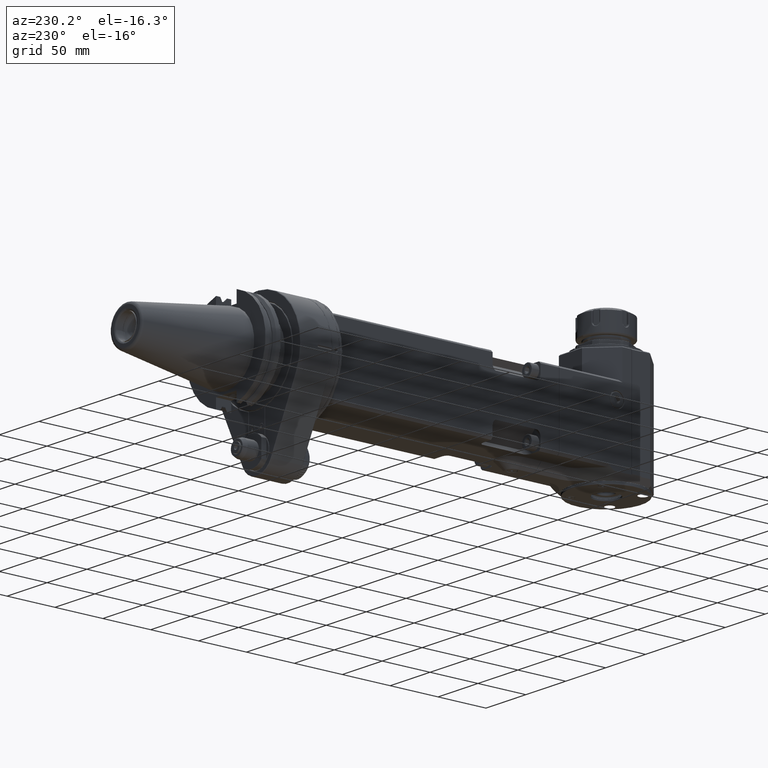
[diagram: clean part render]
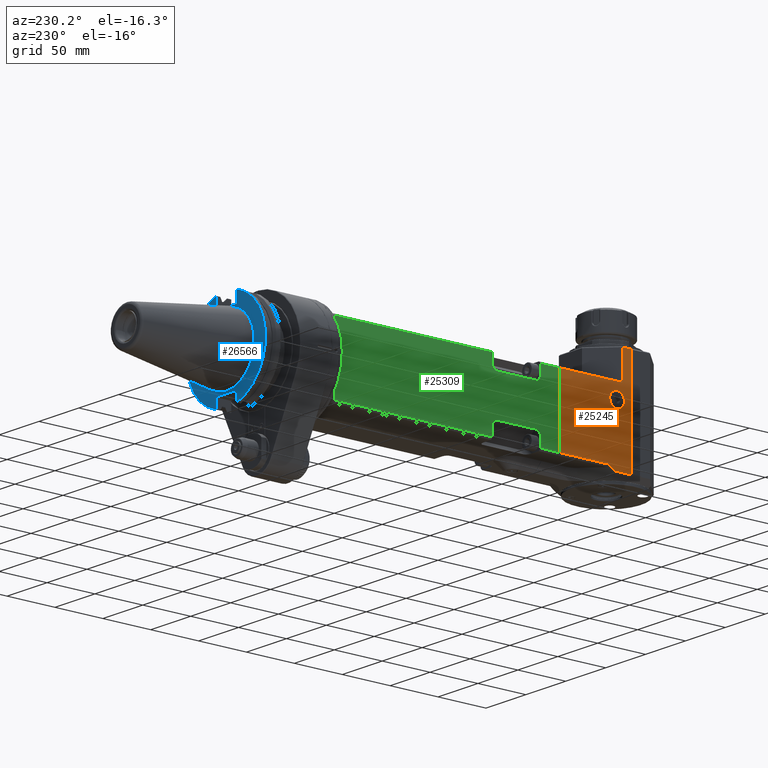
[diagram: same view with three faces highlighted in distinct colors, each labeled with its STEP entity id]
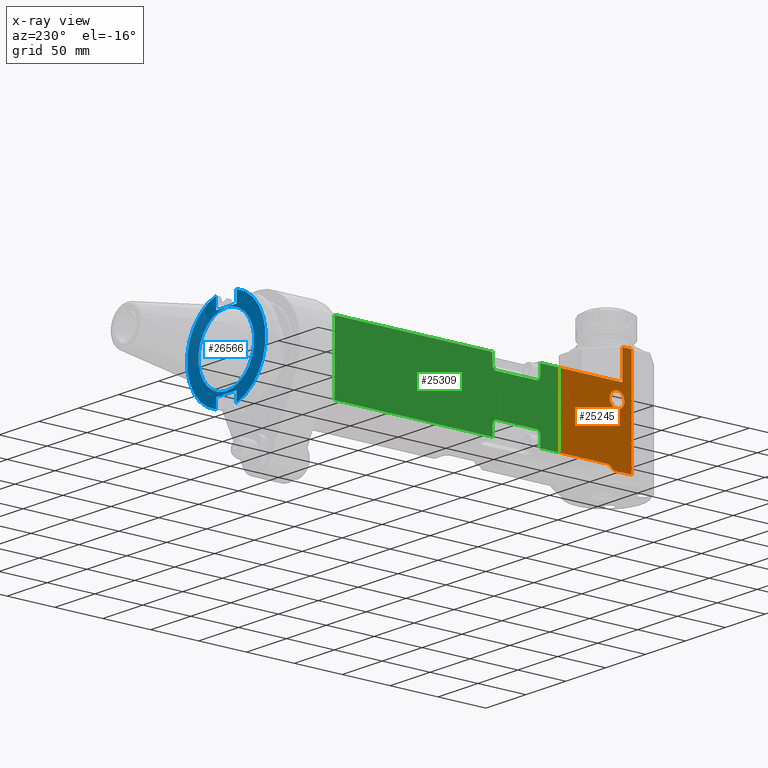
[diagram: x-ray of the same camera — body ghosted, the three highlighted faces saturated]
A machine part, auxiliary view with three faces highlighted in distinct colors.
The next image is the same camera in x-ray (body ghosted, the three faces saturated) — at least one of them is partly hidden behind the body in this view.
Their STEP definitions:

[orange] entity #25245 — the highlighted planar face has unit normal (-1, -0, 0).
#1566=LINE('',#38634,#3651);
#1615=LINE('',#38730,#3700);
#1616=LINE('',#38734,#3701);
#1617=LINE('',#38736,#3702);
#1618=LINE('',#38738,#3703);
#1619=LINE('',#38740,#3704);
#1620=LINE('',#38742,#3705);
#1621=LINE('',#38743,#3706);
#3651=VECTOR('',#29778,9.5);
#3700=VECTOR('',#29857,29.5);
#3701=VECTOR('',#29862,65.3);
#3702=VECTOR('',#29863,71.);
#3703=VECTOR('',#29864,50.45075759508);
#3704=VECTOR('',#29865,7.79422863405972);
#3705=VECTOR('',#29866,17.98528137424);
#3706=VECTOR('',#29867,105.);
#5930=FACE_BOUND('',#7719,.T.);
#6188=FACE_OUTER_BOUND('',#7718,.T.);
#7718=EDGE_LOOP('',(#17241,#17242,#17243,#17244,#17245,#17246,#17247,#17248));
#7719=EDGE_LOOP('',(#17249));
#9341=CIRCLE('',#26971,7.7);
#10338=VERTEX_POINT('',#38631);
#10339=VERTEX_POINT('',#38633);
#10371=VERTEX_POINT('',#38728);
#10372=VERTEX_POINT('',#38733);
#10373=VERTEX_POINT('',#38735);
#10374=VERTEX_POINT('',#38737);
#10375=VERTEX_POINT('',#38739);
#10376=VERTEX_POINT('',#38741);
#10377=VERTEX_POINT('',#38744);
#13000=EDGE_CURVE('',#10338,#10339,#1566,.T.);
#13049=EDGE_CURVE('',#10338,#10371,#1615,.T.);
#13050=EDGE_CURVE('',#10372,#10371,#1616,.T.);
#13051=EDGE_CURVE('',#10373,#10372,#1617,.T.);
#13052=EDGE_CURVE('',#10374,#10373,#1618,.T.);
#13053=EDGE_CURVE('',#10374,#10375,#1619,.T.);
#13054=EDGE_CURVE('',#10376,#10375,#1620,.T.);
#13055=EDGE_CURVE('',#10376,#10339,#1621,.T.);
#13056=EDGE_CURVE('',#10377,#10377,#9341,.T.);
#17241=ORIENTED_EDGE('',*,*,#13000,.F.);
#17242=ORIENTED_EDGE('',*,*,#13049,.T.);
#17243=ORIENTED_EDGE('',*,*,#13050,.F.);
#17244=ORIENTED_EDGE('',*,*,#13051,.F.);
#17245=ORIENTED_EDGE('',*,*,#13052,.F.);
#17246=ORIENTED_EDGE('',*,*,#13053,.T.);
#17247=ORIENTED_EDGE('',*,*,#13054,.F.);
#17248=ORIENTED_EDGE('',*,*,#13055,.T.);
#17249=ORIENTED_EDGE('',*,*,#13056,.T.);
#24432=PLANE('',#26970);
#25245=ADVANCED_FACE('',(#6188,#5930),#24432,.T.);
#26970=AXIS2_PLACEMENT_3D('',#38732,#29860,#29861);
#26971=AXIS2_PLACEMENT_3D('',#38745,#29868,#29869);
#29778=DIRECTION('',(0.,-1.,0.));
#29857=DIRECTION('',(0.,0.,-1.));
#29860=DIRECTION('center_axis',(-1.,0.,0.));
#29861=DIRECTION('ref_axis',(0.,-1.,0.));
#29862=DIRECTION('',(0.,-1.,0.));
#29863=DIRECTION('',(0.,0.,1.));
#29864=DIRECTION('',(0.,1.,0.));
#29865=DIRECTION('',(0.,-0.816496580927729,-0.577350269189621));
#29866=DIRECTION('',(0.,1.,0.));
#29867=DIRECTION('',(0.,0.,1.));
#29868=DIRECTION('center_axis',(1.,0.,0.));
#29869=DIRECTION('ref_axis',(0.,-1.,0.));
#38631=CARTESIAN_POINT('',(-37.5,-317.5,65.));
#38633=CARTESIAN_POINT('',(-37.5,-327.,65.));
#38634=CARTESIAN_POINT('',(-37.5,-317.5,65.));
#38728=CARTESIAN_POINT('',(-37.5,-317.5,35.5));
#38730=CARTESIAN_POINT('',(-37.5,-317.5,65.));
#38732=CARTESIAN_POINT('Origin',(-37.5,-294.5,-46.));
#38733=CARTESIAN_POINT('',(-37.5,-252.2,35.5));
#38734=CARTESIAN_POINT('',(-37.5,-252.2,35.5));
#38735=CARTESIAN_POINT('',(-37.5,-252.2,-35.5));
#38736=CARTESIAN_POINT('',(-37.5,-252.2,-35.5));
#38737=CARTESIAN_POINT('',(-37.5,-302.6507575951,-35.5));
#38738=CARTESIAN_POINT('',(-37.5,-302.6507575951,-35.5));
#38739=CARTESIAN_POINT('',(-37.5,-309.0147186258,-40.));
#38740=CARTESIAN_POINT('',(-37.5,-302.6507575951,-35.5));
#38741=CARTESIAN_POINT('',(-37.5,-327.,-40.));
#38742=CARTESIAN_POINT('',(-37.5,-327.,-40.));
#38743=CARTESIAN_POINT('',(-37.5,-327.,-40.));
#38744=CARTESIAN_POINT('',(-37.5000000000015,-312.,27.6999999999985));
#38745=CARTESIAN_POINT('Origin',(-37.5,-312.,20.));

[blue] entity #26566 — the highlighted planar face has unit normal (0, -1, 0).
#3501=LINE('',#54491,#5586);
#3502=LINE('',#54495,#5587);
#3503=LINE('',#54497,#5588);
#3504=LINE('',#54499,#5589);
#3505=LINE('',#54503,#5590);
#3506=LINE('',#54504,#5591);
#5586=VECTOR('',#35919,10.30264834722);
#5587=VECTOR('',#35922,12.20264834722);
#5588=VECTOR('',#35923,25.7);
#5589=VECTOR('',#35924,12.20264834722);
#5590=VECTOR('',#35927,10.30264834722);
#5591=VECTOR('',#35928,25.7);
#6044=FACE_BOUND('',#9154,.T.);
#7509=FACE_OUTER_BOUND('',#9153,.T.);
#9153=EDGE_LOOP('',(#24181,#24182,#24183,#24184,#24185,#24186,#24187,#24188));
#9154=EDGE_LOOP('',(#24189));
#10087=CIRCLE('',#29055,34.925);
#10088=CIRCLE('',#29057,49.21);
#10089=CIRCLE('',#29058,49.21);
#12620=VERTEX_POINT('',#54485);
#12621=VERTEX_POINT('',#54489);
#12622=VERTEX_POINT('',#54490);
#12623=VERTEX_POINT('',#54492);
#12624=VERTEX_POINT('',#54494);
#12625=VERTEX_POINT('',#54496);
#12626=VERTEX_POINT('',#54498);
#12627=VERTEX_POINT('',#54500);
#12628=VERTEX_POINT('',#54502);
#16485=EDGE_CURVE('',#12620,#12620,#10087,.T.);
#16487=EDGE_CURVE('',#12621,#12622,#3501,.T.);
#16488=EDGE_CURVE('',#12623,#12622,#10088,.T.);
#16489=EDGE_CURVE('',#12624,#12623,#3502,.T.);
#16490=EDGE_CURVE('',#12624,#12625,#3503,.T.);
#16491=EDGE_CURVE('',#12625,#12626,#3504,.T.);
#16492=EDGE_CURVE('',#12627,#12626,#10089,.T.);
#16493=EDGE_CURVE('',#12628,#12627,#3505,.T.);
#16494=EDGE_CURVE('',#12628,#12621,#3506,.T.);
#24181=ORIENTED_EDGE('',*,*,#16487,.T.);
#24182=ORIENTED_EDGE('',*,*,#16488,.F.);
#24183=ORIENTED_EDGE('',*,*,#16489,.F.);
#24184=ORIENTED_EDGE('',*,*,#16490,.T.);
#24185=ORIENTED_EDGE('',*,*,#16491,.T.);
#24186=ORIENTED_EDGE('',*,*,#16492,.F.);
#24187=ORIENTED_EDGE('',*,*,#16493,.F.);
#24188=ORIENTED_EDGE('',*,*,#16494,.T.);
#24189=ORIENTED_EDGE('',*,*,#16485,.F.);
#25090=PLANE('',#29056);
#26566=ADVANCED_FACE('',(#7509,#6044),#25090,.F.);
#29055=AXIS2_PLACEMENT_3D('',#54486,#35914,#35915);
#29056=AXIS2_PLACEMENT_3D('',#54488,#35917,#35918);
#29057=AXIS2_PLACEMENT_3D('',#54493,#35920,#35921);
#29058=AXIS2_PLACEMENT_3D('',#54501,#35925,#35926);
#35914=DIRECTION('center_axis',(0.,1.,0.));
#35915=DIRECTION('ref_axis',(0.,0.,1.));
#35917=DIRECTION('center_axis',(0.,-1.,0.));
#35918=DIRECTION('ref_axis',(0.,0.,1.));
#35919=DIRECTION('',(-3.086273194391E-14,0.,-1.));
#35920=DIRECTION('center_axis',(0.,-1.,0.));
#35921=DIRECTION('ref_axis',(-0.261125787441599,0.,0.965304782508097));
#35922=DIRECTION('',(-2.591171263943E-14,0.,1.));
#35923=DIRECTION('',(1.,0.,0.));
#35924=DIRECTION('',(2.620285547808E-14,0.,1.));
#35925=DIRECTION('center_axis',(0.,-1.,0.));
#35926=DIRECTION('ref_axis',(0.261125787441599,0.,-0.965304782508097));
#35927=DIRECTION('',(3.034547945323E-14,0.,-1.));
#35928=DIRECTION('',(-1.,0.,0.));
#54485=CARTESIAN_POINT('',(0.,64.8,-34.925));
#54486=CARTESIAN_POINT('Origin',(0.,64.8,-1.480248809205E-14));
#54488=CARTESIAN_POINT('Origin',(0.,64.8,-1.94716841064E-15));
#54489=CARTESIAN_POINT('',(-12.85,64.8,-37.2));
#54490=CARTESIAN_POINT('',(-12.85,64.8,-47.50264834722));
#54491=CARTESIAN_POINT('',(-12.85,64.8,-37.2));
#54492=CARTESIAN_POINT('',(-12.85,64.8,47.50264834722));
#54493=CARTESIAN_POINT('Origin',(0.,64.8,-1.480248809205E-14));
#54494=CARTESIAN_POINT('',(-12.85,64.8,35.3));
#54495=CARTESIAN_POINT('',(-12.85,64.8,35.3));
#54496=CARTESIAN_POINT('',(12.85,64.8,35.3));
#54497=CARTESIAN_POINT('',(-12.85,64.8,35.3));
#54498=CARTESIAN_POINT('',(12.85,64.8,47.50264834722));
#54499=CARTESIAN_POINT('',(12.85,64.8,35.3));
#54500=CARTESIAN_POINT('',(12.85,64.8,-47.50264834722));
#54501=CARTESIAN_POINT('Origin',(0.,64.8,-1.480248809205E-14));
#54502=CARTESIAN_POINT('',(12.85,64.8,-37.2));
#54503=CARTESIAN_POINT('',(12.85,64.8,-37.2));
#54504=CARTESIAN_POINT('',(12.85,64.8,-37.2));

[green] entity #25309 — the highlighted planar face has unit normal (-1, -0, 0).
#524=ELLIPSE('',#27135,5.65685424949238,4.);
#525=ELLIPSE('',#27136,5.65685424949238,4.);
#526=ELLIPSE('',#27137,5.65685424949238,4.);
#527=ELLIPSE('',#27138,5.65685424949238,4.);
#1736=LINE('',#39002,#3821);
#1739=LINE('',#39008,#3824);
#1825=LINE('',#39670,#3910);
#1826=LINE('',#39673,#3911);
#1827=LINE('',#39677,#3912);
#1828=LINE('',#39681,#3913);
#1829=LINE('',#39683,#3914);
#1830=LINE('',#39685,#3915);
#1831=LINE('',#39687,#3916);
#1832=LINE('',#39689,#3917);
#1833=LINE('',#39693,#3918);
#1834=LINE('',#39696,#3919);
#3821=VECTOR('',#30120,71.);
#3824=VECTOR('',#30127,19.5);
#3910=VECTOR('',#30397,19.5);
#3911=VECTOR('',#30400,9.313708498985);
#3912=VECTOR('',#30403,42.);
#3913=VECTOR('',#30406,9.313708498985);
#3914=VECTOR('',#30407,165.);
#3915=VECTOR('',#30408,71.);
#3916=VECTOR('',#30409,165.);
#3917=VECTOR('',#30410,9.313708498985);
#3918=VECTOR('',#30413,42.);
#3919=VECTOR('',#30416,9.313708498985);
#6252=FACE_OUTER_BOUND('',#7797,.T.);
#7797=EDGE_LOOP('',(#17778,#17779,#17780,#17781,#17782,#17783,#17784,#17785,
#17786,#17787,#17788,#17789,#17790,#17791,#17792,#17793));
#10450=VERTEX_POINT('',#38997);
#10451=VERTEX_POINT('',#39001);
#10452=VERTEX_POINT('',#39007);
#10680=VERTEX_POINT('',#39668);
#10681=VERTEX_POINT('',#39672);
#10682=VERTEX_POINT('',#39674);
#10683=VERTEX_POINT('',#39676);
#10684=VERTEX_POINT('',#39678);
#10685=VERTEX_POINT('',#39680);
#10686=VERTEX_POINT('',#39682);
#10687=VERTEX_POINT('',#39684);
#10688=VERTEX_POINT('',#39686);
#10689=VERTEX_POINT('',#39688);
#10690=VERTEX_POINT('',#39690);
#10691=VERTEX_POINT('',#39692);
#10692=VERTEX_POINT('',#39694);
#13184=EDGE_CURVE('',#10450,#10451,#1736,.T.);
#13187=EDGE_CURVE('',#10451,#10452,#1739,.T.);
#13423=EDGE_CURVE('',#10450,#10680,#1825,.T.);
#13424=EDGE_CURVE('',#10680,#10681,#1826,.T.);
#13425=EDGE_CURVE('',#10681,#10682,#524,.T.);
#13426=EDGE_CURVE('',#10683,#10682,#1827,.T.);
#13427=EDGE_CURVE('',#10683,#10684,#525,.T.);
#13428=EDGE_CURVE('',#10685,#10684,#1828,.T.);
#13429=EDGE_CURVE('',#10685,#10686,#1829,.T.);
#13430=EDGE_CURVE('',#10686,#10687,#1830,.T.);
#13431=EDGE_CURVE('',#10688,#10687,#1831,.T.);
#13432=EDGE_CURVE('',#10688,#10689,#1832,.T.);
#13433=EDGE_CURVE('',#10689,#10690,#526,.T.);
#13434=EDGE_CURVE('',#10690,#10691,#1833,.T.);
#13435=EDGE_CURVE('',#10691,#10692,#527,.T.);
#13436=EDGE_CURVE('',#10452,#10692,#1834,.T.);
#17778=ORIENTED_EDGE('',*,*,#13184,.F.);
#17779=ORIENTED_EDGE('',*,*,#13423,.T.);
#17780=ORIENTED_EDGE('',*,*,#13424,.T.);
#17781=ORIENTED_EDGE('',*,*,#13425,.T.);
#17782=ORIENTED_EDGE('',*,*,#13426,.F.);
#17783=ORIENTED_EDGE('',*,*,#13427,.T.);
#17784=ORIENTED_EDGE('',*,*,#13428,.F.);
#17785=ORIENTED_EDGE('',*,*,#13429,.T.);
#17786=ORIENTED_EDGE('',*,*,#13430,.T.);
#17787=ORIENTED_EDGE('',*,*,#13431,.F.);
#17788=ORIENTED_EDGE('',*,*,#13432,.T.);
#17789=ORIENTED_EDGE('',*,*,#13433,.T.);
#17790=ORIENTED_EDGE('',*,*,#13434,.T.);
#17791=ORIENTED_EDGE('',*,*,#13435,.T.);
#17792=ORIENTED_EDGE('',*,*,#13436,.F.);
#17793=ORIENTED_EDGE('',*,*,#13187,.F.);
#24493=PLANE('',#27134);
#25309=ADVANCED_FACE('',(#6252),#24493,.T.);
#27134=AXIS2_PLACEMENT_3D('',#39671,#30398,#30399);
#27135=AXIS2_PLACEMENT_3D('',#39675,#30401,#30402);
#27136=AXIS2_PLACEMENT_3D('',#39679,#30404,#30405);
#27137=AXIS2_PLACEMENT_3D('',#39691,#30411,#30412);
#27138=AXIS2_PLACEMENT_3D('',#39695,#30414,#30415);
#30120=DIRECTION('',(0.,0.,-1.));
#30127=DIRECTION('',(0.,1.,0.));
#30397=DIRECTION('',(0.,1.,0.));
#30398=DIRECTION('center_axis',(-1.,0.,0.));
#30399=DIRECTION('ref_axis',(0.,0.,-1.));
#30400=DIRECTION('',(0.,0.,-1.));
#30401=DIRECTION('center_axis',(1.,0.,0.));
#30402=DIRECTION('ref_axis',(0.,0.,-1.));
#30403=DIRECTION('',(0.,-1.,0.));
#30404=DIRECTION('center_axis',(1.,0.,0.));
#30405=DIRECTION('ref_axis',(0.,0.,-1.));
#30406=DIRECTION('',(0.,0.,-1.));
#30407=DIRECTION('',(0.,1.,0.));
#30408=DIRECTION('',(0.,0.,-1.));
#30409=DIRECTION('',(0.,1.,0.));
#30410=DIRECTION('',(0.,0.,1.));
#30411=DIRECTION('center_axis',(1.,0.,0.));
#30412=DIRECTION('ref_axis',(0.,0.,1.));
#30413=DIRECTION('',(0.,-1.,0.));
#30414=DIRECTION('center_axis',(1.,0.,0.));
#30415=DIRECTION('ref_axis',(0.,0.,1.));
#30416=DIRECTION('',(0.,0.,1.));
#38997=CARTESIAN_POINT('',(-37.5,-251.5,35.5));
#39001=CARTESIAN_POINT('',(-37.5,-251.5,-35.5));
#39002=CARTESIAN_POINT('',(-37.5,-251.5,35.5));
#39007=CARTESIAN_POINT('',(-37.5,-232.,-35.5));
#39008=CARTESIAN_POINT('',(-37.5,-251.5,-35.5));
#39668=CARTESIAN_POINT('',(-37.5,-232.,35.5));
#39670=CARTESIAN_POINT('',(-37.5,-251.5,35.5));
#39671=CARTESIAN_POINT('Origin',(-37.5,-11.,37.5));
#39672=CARTESIAN_POINT('',(-37.5,-232.,26.18629150102));
#39673=CARTESIAN_POINT('',(-37.5,-232.,35.5));
#39674=CARTESIAN_POINT('',(-37.5,-228.,20.52943725152));
#39675=CARTESIAN_POINT('Origin',(-37.5,-228.,26.186291501));
#39676=CARTESIAN_POINT('',(-37.5,-186.,20.52943725152));
#39677=CARTESIAN_POINT('',(-37.5,-186.,20.52943725152));
#39678=CARTESIAN_POINT('',(-37.5,-182.,26.18629150102));
#39679=CARTESIAN_POINT('Origin',(-37.5,-186.,26.186291501));
#39680=CARTESIAN_POINT('',(-37.5,-182.,35.5));
#39681=CARTESIAN_POINT('',(-37.5,-182.,35.5));
#39682=CARTESIAN_POINT('',(-37.5,-17.,35.5));
#39683=CARTESIAN_POINT('',(-37.5,-182.,35.5));
#39684=CARTESIAN_POINT('',(-37.5,-17.,-35.5));
#39685=CARTESIAN_POINT('',(-37.5,-17.,35.5));
#39686=CARTESIAN_POINT('',(-37.5,-182.,-35.5));
#39687=CARTESIAN_POINT('',(-37.5,-182.,-35.5));
#39688=CARTESIAN_POINT('',(-37.5,-182.,-26.18629150102));
#39689=CARTESIAN_POINT('',(-37.5,-182.,-35.5));
#39690=CARTESIAN_POINT('',(-37.5,-186.,-20.52943725152));
#39691=CARTESIAN_POINT('Origin',(-37.5,-186.,-26.186291501));
#39692=CARTESIAN_POINT('',(-37.5,-228.,-20.52943725152));
#39693=CARTESIAN_POINT('',(-37.5,-186.,-20.52943725152));
#39694=CARTESIAN_POINT('',(-37.5,-232.,-26.18629150102));
#39695=CARTESIAN_POINT('Origin',(-37.5,-228.,-26.186291501));
#39696=CARTESIAN_POINT('',(-37.5,-232.,-35.5));